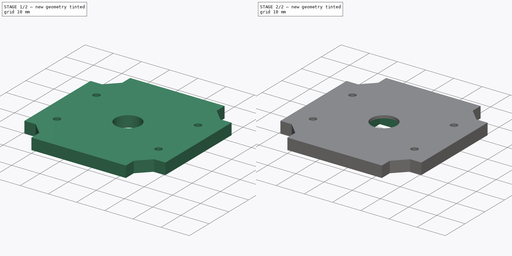
[diagram: build sequence overview — one tinted view per stage of 2, left to right]
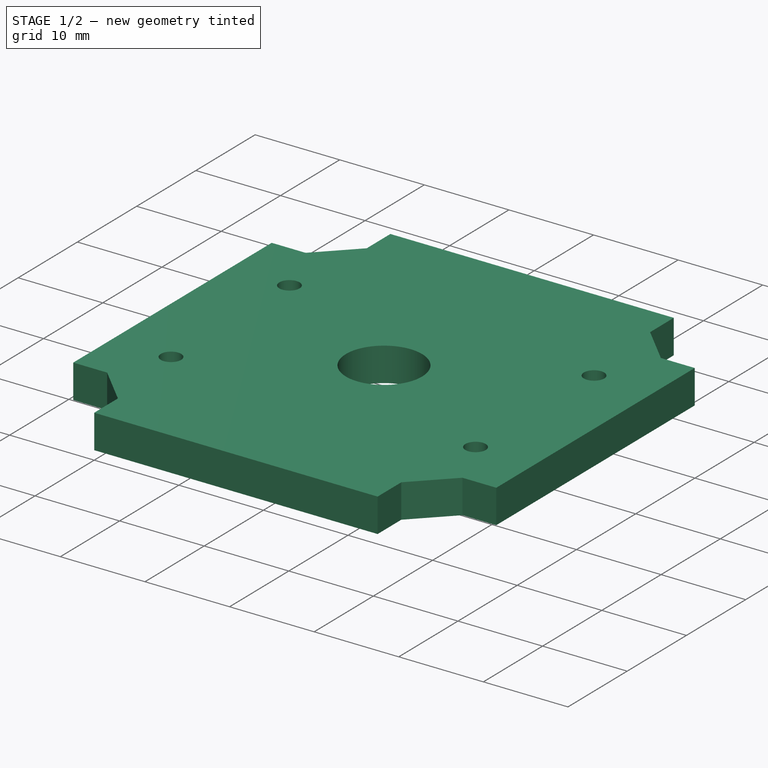
[diagram: stage 1 of 2 — iso view after this stage's code; geometry added in this stage tinted green]
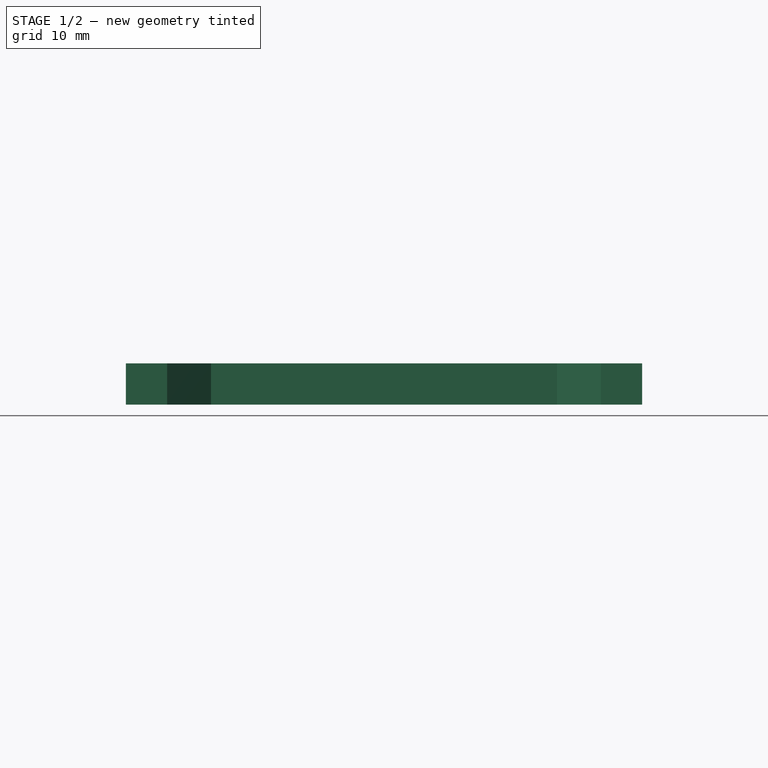
[diagram: stage 1 of 2 — front view after this stage's code; geometry added in this stage tinted green]
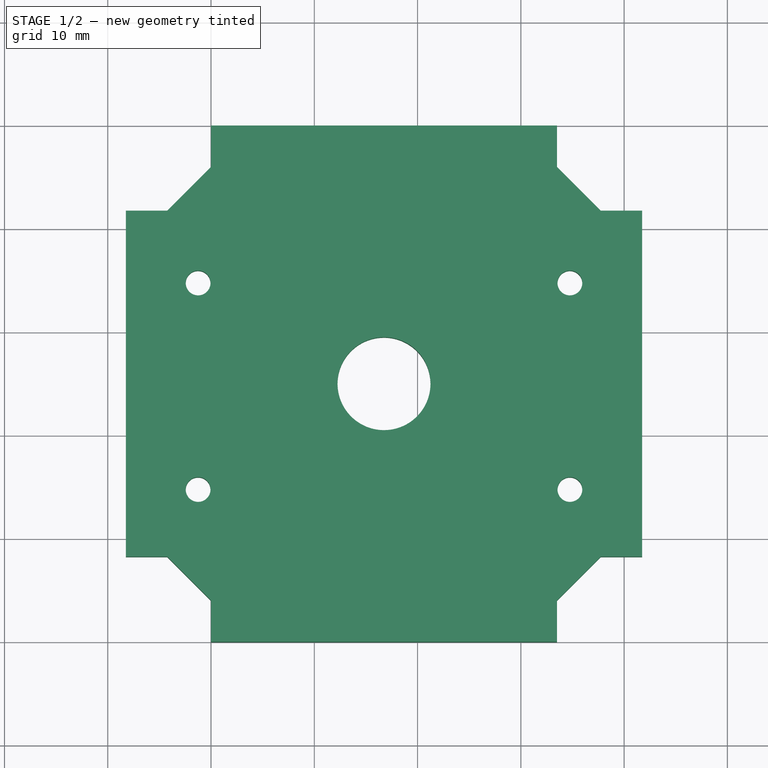
[diagram: stage 1 of 2 — top view after this stage's code; geometry added in this stage tinted green]
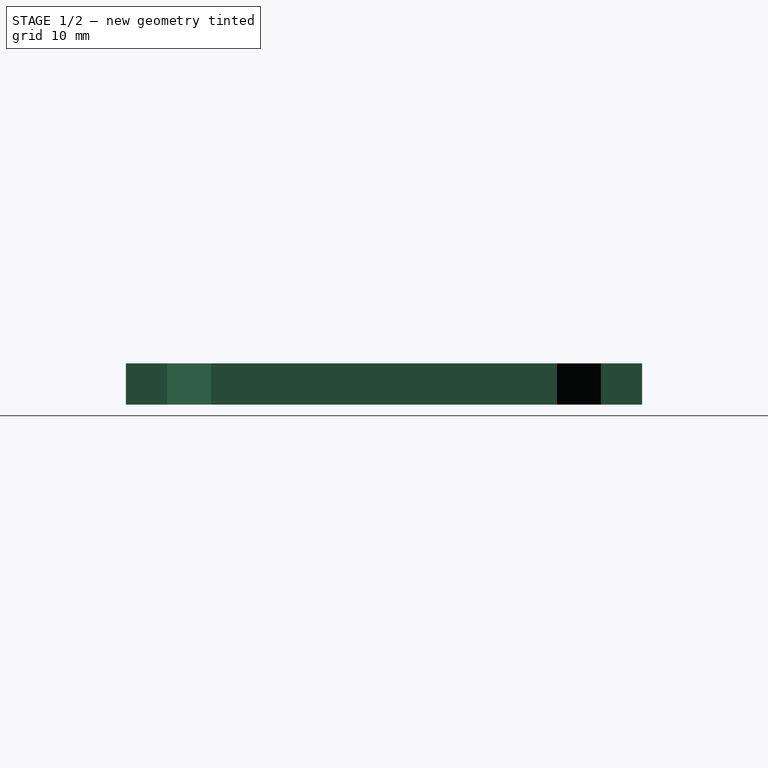
[diagram: stage 1 of 2 — right view after this stage's code; geometry added in this stage tinted green]
FCSTD DOCUMENT  (FreeCAD 0.19R24291 (Git))
Label: ESPCam Front Plate
License: All rights reserved
LicenseURL: http://en.wikipedia.org/wiki/All_rights_reserved
objects: Sketcher::SketchObject×2, PartDesign::Pad×1, PartDesign::Pocket×1, PartDesign::Body×1
note: 7 computed .brp shape members not serialized (recipe doc carries the construction recipe); baked Part::Feature solids carry a one-line shape summary decoded from their .brp

FEATURE [Sketcher::SketchObject] Sketch
  FullyConstrained = true
  MapMode = 5
  Support = -> [XY_Plane]
  sketch-geometry (31):
    g0: LineSegment StartX=0 StartY=0 StartZ=0 EndX=33.5 EndY=0 EndZ=0
    g1: LineSegment StartX=33.5 StartY=0 StartZ=0 EndX=33.5 EndY=4 EndZ=0
    g2: LineSegment StartX=33.5 StartY=4 StartZ=0 EndX=37.75 EndY=8.25 EndZ=0
    g3: LineSegment StartX=37.75 StartY=8.25 StartZ=0 EndX=41.75 EndY=8.25 EndZ=0
    g4: LineSegment StartX=41.75 StartY=8.25 StartZ=0 EndX=41.75 EndY=41.75 EndZ=0
    g5: LineSegment StartX=41.75 StartY=41.75 StartZ=0 EndX=37.75 EndY=41.75 EndZ=0
    g6: LineSegment StartX=37.75 StartY=41.75 StartZ=0 EndX=33.5 EndY=46 EndZ=0
    g7: LineSegment StartX=33.5 StartY=46 StartZ=0 EndX=33.5 EndY=50 EndZ=0
    g8: LineSegment StartX=33.5 StartY=50 StartZ=0 EndX=0 EndY=50 EndZ=0
    g9: LineSegment StartX=0 StartY=50 StartZ=0 EndX=0 EndY=46 EndZ=0
    g10: LineSegment StartX=0 StartY=46 StartZ=0 EndX=-4.25 EndY=41.75 EndZ=0
    g11: LineSegment StartX=-4.25 StartY=41.75 StartZ=0 EndX=-8.25 EndY=41.75 EndZ=0
    g12: LineSegment StartX=-8.25 StartY=41.75 StartZ=0 EndX=-8.25 EndY=8.25 EndZ=0
    g13: LineSegment StartX=-8.25 StartY=8.25 StartZ=0 EndX=-4.25 EndY=8.25 EndZ=0
    g14: LineSegment StartX=-4.25 StartY=8.25 StartZ=0 EndX=0 EndY=4 EndZ=0
    g15: LineSegment StartX=0 StartY=4 StartZ=0 EndX=0 EndY=0 EndZ=0
    g16: LineSegment StartX=-4.25 StartY=8.25 StartZ=0 EndX=37.75 EndY=8.25 EndZ=0
    g17: LineSegment StartX=33.5 StartY=4 StartZ=0 EndX=33.5 EndY=46 EndZ=0
    g18: LineSegment StartX=0 StartY=46 StartZ=0 EndX=0 EndY=4 EndZ=0
    g19: LineSegment StartX=-4.25 StartY=41.75 StartZ=0 EndX=37.75 EndY=41.75 EndZ=0
    g20: Circle CenterX=16.75 CenterY=25 CenterZ=0 NormalX=0 NormalY=0 NormalZ=1 AngleXU=0 Radius=4.5
    g21: LineSegment StartX=41.75 StartY=41.75 StartZ=0 EndX=-8.25 EndY=8.25 EndZ=0
    g22: LineSegment StartX=-8.25 StartY=41.75 StartZ=0 EndX=41.75 EndY=8.25 EndZ=0
    g23: Circle CenterX=-1.25 CenterY=34.75 CenterZ=0 NormalX=0 NormalY=0 NormalZ=1 AngleXU=0 Radius=1.2
    g24: Circle CenterX=-1.25 CenterY=14.75 CenterZ=0 NormalX=0 NormalY=0 NormalZ=1 AngleXU=0 Radius=1.2
    g25: Circle CenterX=34.75 CenterY=34.75 CenterZ=0 NormalX=0 NormalY=0 NormalZ=1 AngleXU=0 Radius=1.2
    g26: LineSegment StartX=-1.25 StartY=34.75 StartZ=0 EndX=-1.25 EndY=14.75 EndZ=0
    g27: LineSegment StartX=-1.25 StartY=14.75 StartZ=0 EndX=34.75 EndY=14.75 EndZ=0
    g28: LineSegment StartX=34.75 StartY=14.75 StartZ=0 EndX=34.75 EndY=34.75 EndZ=0
    g29: LineSegment StartX=34.75 StartY=34.75 StartZ=0 EndX=-1.25 EndY=34.75 EndZ=0
    g30: Circle CenterX=34.75 CenterY=14.75 CenterZ=0 NormalX=0 NormalY=0 NormalZ=1 AngleXU=0 Radius=1.2
  constraints (82):
    c: Coincident(g0,g-1)
    c: PointOnObject(g0,g-1)
    c: Coincident(g1,g0)
    c: Vertical(g1)
    c: Coincident(g2,g1)
    c: Horizontal(g3)
    c: Coincident(g4,g3)
    c: Vertical(g4)
    c: Coincident(g5,g4)
    c: Horizontal(g5)
    c: Coincident(g6,g5)
    c: Coincident(g7,g6)
    c: Vertical(g7)
    c: Coincident(g8,g7)
    c: PointOnObject(g8,g-2)
    c: Horizontal(g8)
    c: Coincident(g9,g8)
    c: PointOnObject(g9,g-2)
    c: Coincident(g10,g9)
    c: Coincident(g11,g10)
    c: Coincident(g12,g11)
    c: Vertical(g12)
    c: Coincident(g13,g12)
    c: PointOnObject(g14,g-2)
    c: Coincident(g15,g14)
    c: Coincident(g15,g0)
    c: Horizontal(g13)
    c: Coincident(g16,g14)
    c: Coincident(g16,g2)
    c: Horizontal(g16)
    c: Coincident(g17,g1)
    c: Coincident(g17,g6)
    c: Vertical(g17)
    c: Coincident(g18,g9)
    c: Coincident(g18,g14)
    c: Coincident(g19,g10)
    c: Coincident(g19,g5)
    c: Horizontal(g19)
    c: Equal(g3,g1)
    c: Equal(g1,g15)
    c: Equal(g15,g13)
    c: Equal(g13,g11)
    c: Equal(g11,g9)
    c: Equal(g9,g7)
    c: Equal(g7,g5)
    c: Coincident(g2,g3)
    c: Coincident(g13,g14)
    c: Horizontal(g11)
    c: Equal(g10,g6)
    c: Equal(g6,g2)
    c: DistanceX(g8,g8) = 33.5
    c: DistanceY(g1,g1) = 4
    c: DistanceX(g12,g3) = 50
    c: DistanceY(g0,g7) = 50
    c: DistanceY(g4,g4) = 33.5
    c: Coincident(g21,g4)
    c: Coincident(g21,g12)
    c: Coincident(g22,g11)
    c: Coincident(g22,g3)
    c: PointOnObject(g20,g21)
    c: PointOnObject(g20,g22)
    c: Diameter(g20) = 9
    c: Diameter(g23) = 2.4
    c: Coincident(g26,g23)
    c: Coincident(g26,g24)
    c: Vertical(g26)
    c: Coincident(g27,g24)
    c: Horizontal(g27)
    c: Coincident(g28,g25)
    c: Vertical(g28)
    c: Coincident(g29,g25)
    c: Coincident(g29,g23)
    c: Horizontal(g29)
    c: DistanceX(g11,g23) = 7
    c: DistanceX(g25,g4) = 7
    c: DistanceY(g26,g26) = 20
    c: Coincident(g27,g28)
    c: DistanceY(g13,g24) = 6.5
    c: Coincident(g30,g27)
    c: Equal(g30,g24)
    c: Equal(g24,g23)
    c: Equal(g23,g25)
FEATURE [PartDesign::Pad] Pad
  Direction = (1,1,1)
  Length = 4
  Length2 = 100
  Profile = -> Sketch
  Type = 0
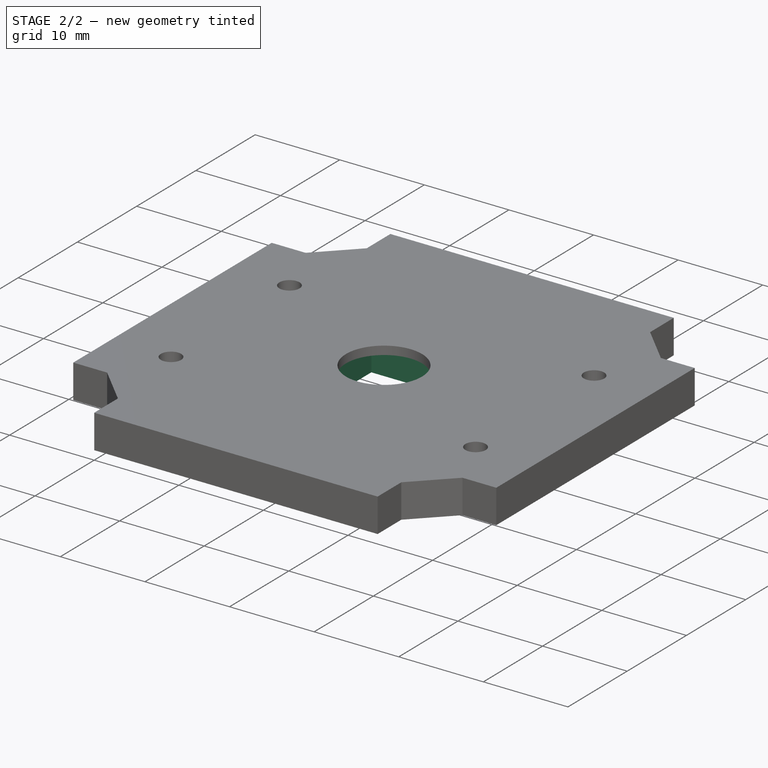
[diagram: stage 2 of 2 — iso view after this stage's code; geometry added in this stage tinted green]
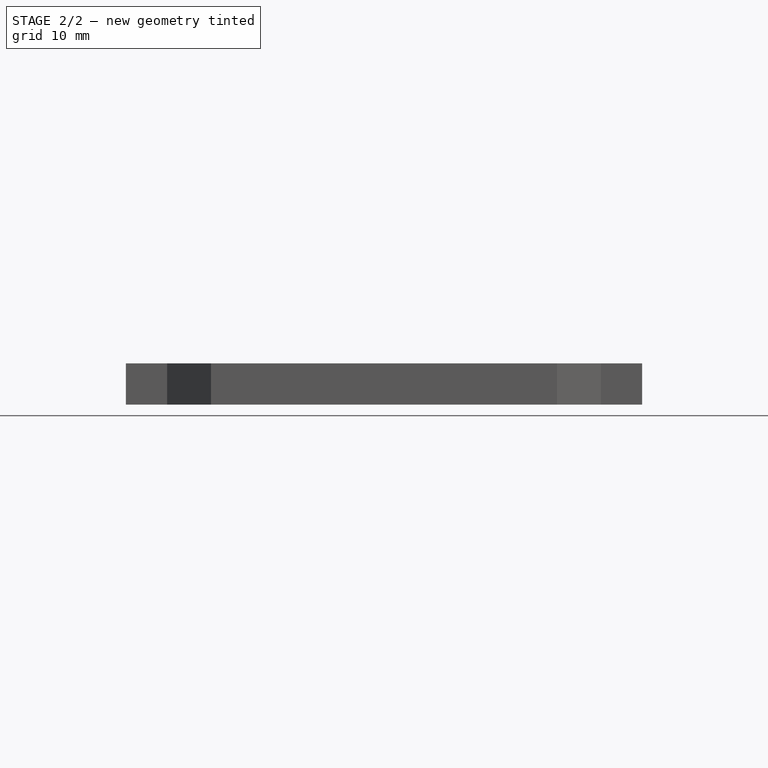
[diagram: stage 2 of 2 — front view after this stage's code; geometry added in this stage tinted green]
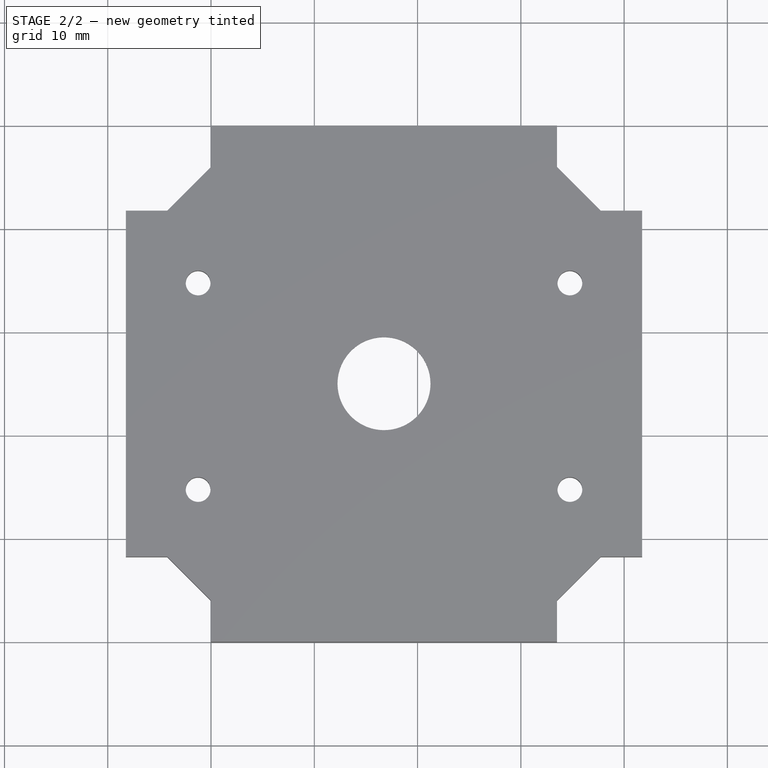
[diagram: stage 2 of 2 — top view after this stage's code; geometry added in this stage tinted green]
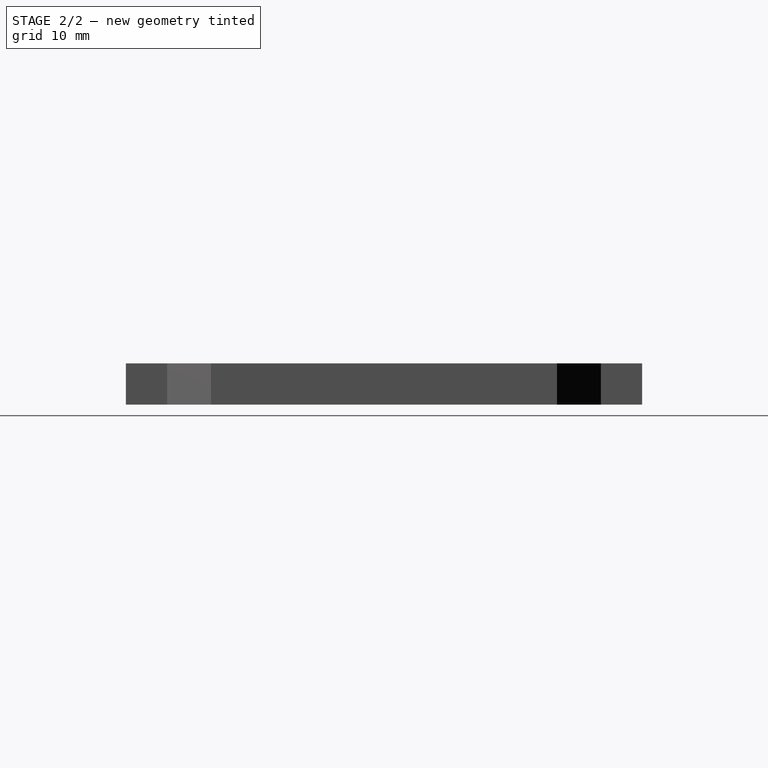
[diagram: stage 2 of 2 — right view after this stage's code; geometry added in this stage tinted green]
FEATURE [Sketcher::SketchObject] Sketch001
  ExternalGeometry = -> [Pad]
  FullyConstrained = true
  MapMode = 5
  Support = -> [XY_Plane]
  sketch-geometry (7):
    g0: LineSegment StartX=21.75 StartY=30 StartZ=0 EndX=11.75 EndY=30 EndZ=0
    g1: LineSegment StartX=11.75 StartY=30 StartZ=0 EndX=11.75 EndY=20 EndZ=0
    g2: LineSegment StartX=11.75 StartY=20 StartZ=0 EndX=21.75 EndY=20 EndZ=0
    g3: LineSegment StartX=21.75 StartY=20 StartZ=0 EndX=21.75 EndY=30 EndZ=0
    g4: LineSegment StartX=11.75 StartY=20 StartZ=0 EndX=21.75 EndY=30 EndZ=0
    g5: LineSegment StartX=21.75 StartY=20 StartZ=0 EndX=11.75 EndY=30 EndZ=0
    g6: GeomPoint X=16.75 Y=25 Z=0
  constraints (17):
    c: Coincident(g0,g1)
    c: Coincident(g1,g2)
    c: Coincident(g2,g3)
    c: Coincident(g3,g0)
    c: Horizontal(g0)
    c: Horizontal(g2)
    c: Vertical(g1)
    c: Vertical(g3)
    c: DistanceY(g3,g3) = 10
    c: DistanceX(g2,g2) = 10
    c: Coincident(g4,g1)
    c: Coincident(g4,g0)
    c: Coincident(g5,g2)
    c: Coincident(g5,g0)
    c: PointOnObject(g6,g4)
    c: PointOnObject(g6,g5)
    c: Coincident(g6,g-3)
FEATURE [PartDesign::Pocket] Pocket
  BaseFeature = -> Pad
  Length = 3
  Length2 = 100
  Profile = -> Sketch001
  Reversed = true
  Type = 0
FEATURE [PartDesign::Body] Body
  Group = -> [Sketch,Pad,Sketch001,Pocket]
  Origin = -> Origin
  Tip = -> Pocket
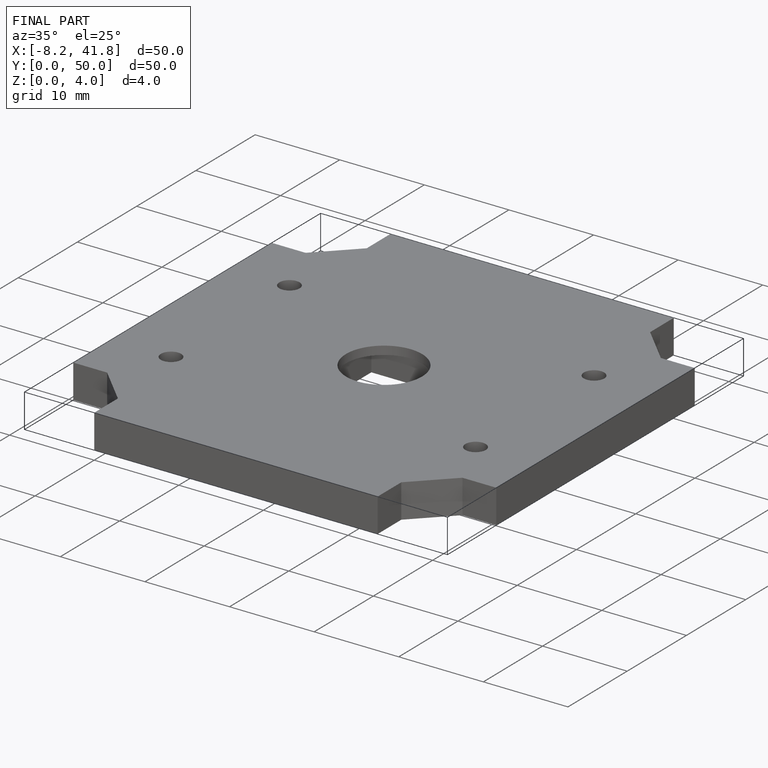
[diagram: finished part — iso view with bounding-box wireframe]
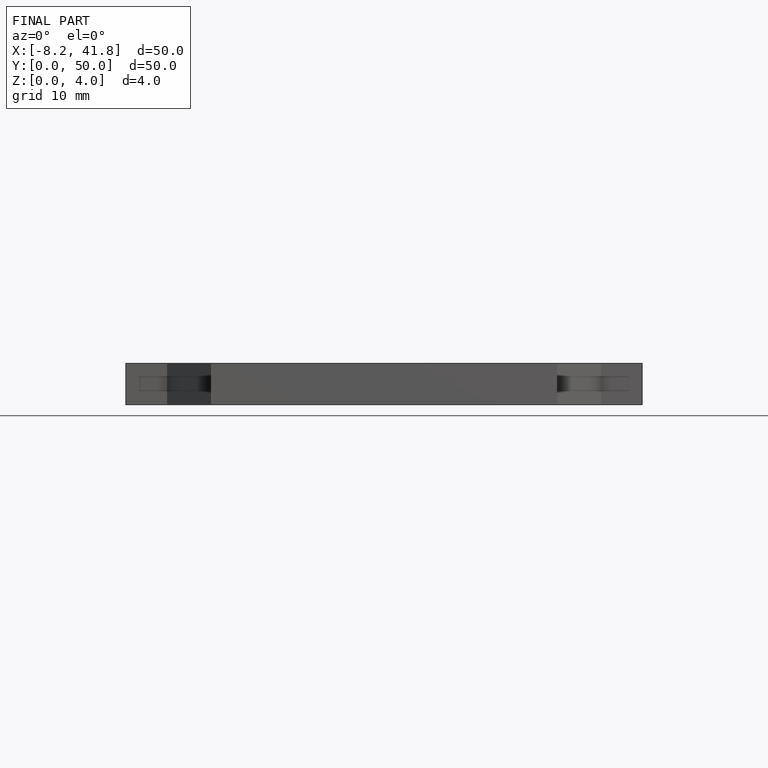
[diagram: finished part — front view with bounding-box wireframe]
